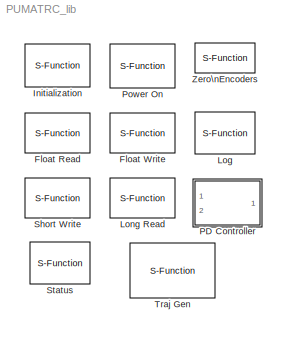
MODEL PUMATRC_lib
KIND library
BLOCK [S-Function] Float Read
  FunctionName = fltrd
  MaskCallbackString = ||
  MaskDescription = Reads a float value from OPTION offset and channel of Servo-To-Go board.
  MaskDisplay = port_label ('output',1,'val')
  MaskEnableString = on,on,on
  MaskIconFrame = on
  MaskIconOpaque = on
  MaskIconRotate = none
  MaskIconUnits = autoscale
  MaskPromptString = Option|Channel|Sample Time
  MaskStyleString = popup(TORQUE|TORQUE6|VOLTAGE|POSITION|POSITION6|STATUS|POT|POT6|INDEX|INDEX6|POWER|CALIB),edit,edit
  MaskTabNameString = ,,
  MaskToolTipString = on,on,on
  MaskTunableValueString = on,on,on
  MaskValueString = TORQUE|0|0
  MaskVarAliasString = ,,
  MaskVariables = option=@1;channel=@2;sampleTime=@3;
  MaskVisibilityString = on,on,on
  Parameters = option,channel,sampleTime
  Ports = [0, 1]
  Priority = 10
BLOCK [S-Function] Float Write
  FunctionName = fltwr
  MaskCallbackString = ||
  MaskDescription = Writes a float value to OPTION offset and channel of Servo-To-Go board.
  MaskDisplay = port_label('input',1,'val')\ndisp('')
  MaskEnableString = on,on,on
  MaskIconFrame = on
  MaskIconOpaque = on
  MaskIconRotate = none
  MaskIconUnits = autoscale
  MaskPromptString = Option|Channel|Sample Time
  MaskStyleString = popup(TORQUE|TORQUE6|VOLTAGE|POSITION|POSITION6|STATUS|POT|POT6|INDEX|INDEX6|POWER|CALIB),edit,edit
  MaskTabNameString = ,,
  MaskToolTipString = on,on,on
  MaskTunableValueString = on,on,on
  MaskValueString = TORQUE|0|0
  MaskVarAliasString = ,,
  MaskVariables = option=@1;channel=@2;sampleTime=@3;
  MaskVisibilityString = on,on,on
  Parameters = option,channel,sampleTime
  Ports = [1]
  Priority = 10
BLOCK [S-Function] Initialization
  FunctionName = robot_init
  MaskDescription = Initializes a Servo-To-Go board. Enter board address in decimal.
  MaskDisplay = disp('Board\\nInitialization')\n
  MaskEnableString = on
  MaskIconFrame = on
  MaskIconOpaque = on
  MaskIconRotate = none
  MaskIconUnits = autoscale
  MaskPromptString = Board Address(in decimal)
  MaskStyleString = edit
  MaskToolTipString = on
  MaskTunableValueString = on
  MaskValueString = 0
  MaskVariables = boardAddr=@1;
  MaskVisibilityString = on
  Parameters = boardAddr
  Ports = []
  Priority = 1
BLOCK [S-Function] Log
  FunctionName = flog
  MaskCallbackString = |
  MaskDescription = Values from the input are written to the filename at the specified period. The filename should be relative to the directory where model/code resides.\n
  MaskDisplay = port_label('input',1,'to File')\ndisp('')
  MaskEnableString = on,on
  MaskIconFrame = on
  MaskIconOpaque = on
  MaskIconRotate = none
  MaskIconUnits = autoscale
  MaskPromptString = Log Filename|Sample Time
  MaskSelfModifiable = on
  MaskStyleString = edit,edit
  MaskTabNameString = ,
  MaskToolTipString = on,on
  MaskTunableValueString = on,on
  MaskValueString = 0|0
  MaskVarAliasString = ,
  MaskVariables = fileName=@1;sampleTime=@2;
  MaskVisibilityString = on,on
  Parameters = fileName,sampleTime
  Ports = [1]
  Priority = 10
BLOCK [S-Function] Long Read
  FunctionName = longrd
  MaskCallbackString = ||
  MaskDescription = Writes a long value to OPTION offset and channel of Servo-To-Go board.
  MaskDisplay = port_label('output',1,'val')\ndisp('')
  MaskEnableString = on,on,on
  MaskIconFrame = on
  MaskIconOpaque = on
  MaskIconRotate = none
  MaskIconUnits = autoscale
  MaskPromptString = Option|Channel|Sample Time
  MaskStyleString = popup(TORQUE|TORQUE6|VOLTAGE|POSITION|POSITION6|STATUS|POT|POT6|INDEX|INDEX6|POWER|CALIB),edit,edit
  MaskTabNameString = ,,
  MaskToolTipString = on,on,on
  MaskTunableValueString = on,on,on
  MaskValueString = TORQUE|0|0
  MaskVarAliasString = ,,
  MaskVariables = option=@1;channel=@2;sampleTime=@3;
  MaskVisibilityString = on,on,on
  Parameters = option,channel,sampleTime
  Ports = [0, 1]
  Priority = 10
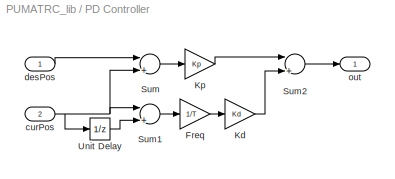
BLOCK [SubSystem] PD Controller
  MaskCallbackString = ||
  MaskDescription = Proportional-Derivative controller. Torque = Kp*(desPos- pos) - Kv*(time averaged velocity)
  MaskEnableString = on,on,on
  MaskIconFrame = on
  MaskIconOpaque = on
  MaskIconRotate = none
  MaskIconUnits = autoscale
  MaskPromptString = Kp|Kd|Sample Time
  MaskStyleString = edit,edit,edit
  MaskTabNameString = ,,
  MaskToolTipString = on,on,on
  MaskTunableValueString = on,on,on
  MaskValueString = 0|0|0
  MaskVarAliasString = ,,
  MaskVariables = Kp=@1;Kd=@2;T=@3;
  MaskVisibilityString = on,on,on
  MinAlgLoopOccurrences = off
  Ports = [2, 1]
  Priority = 10
  RTWSystemCode = Auto
  TreatAsAtomicUnit = off
BLOCK [Gain] PD Controller/Freq
  Gain = 1/T
BLOCK [Gain] PD Controller/Kd
  Gain = Kd
BLOCK [Gain] PD Controller/Kp
  Gain = Kp
BLOCK [Sum] PD Controller/Sum
  InputSameDT = off
  Inputs = |+-
  OutDataTypeMode = Inherit via internal rule
  Ports = [2, 1]
BLOCK [Sum] PD Controller/Sum1
  InputSameDT = off
  Inputs = |+-
  OutDataTypeMode = Inherit via internal rule
  Ports = [2, 1]
BLOCK [Sum] PD Controller/Sum2
  InputSameDT = off
  Inputs = |+-
  OutDataTypeMode = Inherit via internal rule
  Ports = [2, 1]
BLOCK [UnitDelay] PD Controller/Unit Delay
  SampleTime = T
BLOCK [Inport] PD Controller/curPos
  IconDisplay = Port number
  LatchInput = off
  Port = 2
BLOCK [Inport] PD Controller/desPos
  IconDisplay = Port number
  LatchInput = off
  Port = 1
BLOCK [Outport] PD Controller/out
  BusOutputAsStruct = off
  IconDisplay = Port number
BLOCK [S-Function] Power On
  FunctionName = robot_power
  MaskDisplay = disp('Power On')
  MaskIconFrame = on
  MaskIconOpaque = on
  MaskIconRotate = none
  MaskIconUnits = autoscale
  Ports = []
  Priority = 2
BLOCK [S-Function] Short Write
  FunctionName = shortwr
  MaskCallbackString = ||
  MaskDescription = Reads a short value from OPTION offset and channel of Servo-To-Go board.
  MaskDisplay = port_label('input',1,'val')\ndisp('')
  MaskEnableString = on,on,on
  MaskIconFrame = on
  MaskIconOpaque = on
  MaskIconRotate = none
  MaskIconUnits = autoscale
  MaskPromptString = Option|Channel|Sample Time
  MaskStyleString = popup(TORQUE|TORQUE6|VOLTAGE|POSITION|POSITION6|STATUS|POT|POT6|INDEX|INDEX6|POWER|CALIB),edit,edit
  MaskTabNameString = ,,
  MaskToolTipString = on,on,on
  MaskTunableValueString = on,on,on
  MaskValueString = TORQUE|0|0
  MaskVarAliasString = ,,
  MaskVariables = option=@1;channel=@2;sampleTime=@3;
  MaskVisibilityString = on,on,on
  Parameters = option,channel,sampleTime
  Ports = [1]
  Priority = 10
BLOCK [S-Function] Status
  FunctionName = status
  MaskCallbackString = ||
  MaskDisplay = port_label('output',1,'val')\n
  MaskEnableString = on,on,on
  MaskIconFrame = on
  MaskIconOpaque = on
  MaskIconRotate = none
  MaskIconUnits = autoscale
  MaskPromptString = Option|Channel|Sample Time
  MaskStyleString = popup(TORQUE|TORQUE6|VOLTAGE|POSITION|POSITION6|STATUS|POT|POT6|INDEX|INDEX6|POWER|CALIB|HAND|INDEX_BIT|ALL_INDEX_BITS|CLR_INDEX_BIT|CLR_INDEX_BITS|CLR_ADC_BIT ),edit,edit
  MaskTabNameString = ,,
  MaskToolTipString = on,on,on
  MaskTunableValueString = on,on,on
  MaskValueString = TORQUE|0|0
  MaskVarAliasString = ,,
  MaskVariables = option=@1;channel=@2;sampleTime=@3;
  MaskVisibilityString = on,on,on
  Parameters = option,channel,sampleTime,
  Ports = [0, 1]
BLOCK [S-Function] Traj Gen
  FunctionName = trajq
  MaskCallbackString = ||||
  MaskDisplay = port_label('input',1,'theta')\nport_label('input',2','enable')\nport_label('output',1,'jt')\nport_label('output',2,'stop')
  MaskEnableString = on,on,on,on,on
  MaskIconFrame = on
  MaskIconOpaque = on
  MaskIconRotate = none
  MaskIconUnits = autoscale
  MaskPromptString = Sample Time|Joint Minimum Angles|Joint Maximum Angles|Calibration File Name|Joint Increments
  MaskStyleString = edit,edit,edit,edit,edit
  MaskTabNameString = ,,,,
  MaskToolTipString = on,on,on,on,on
  MaskTunableValueString = on,on,on,on,on
  MaskValueString = 0|0|0|0|0
  MaskVarAliasString = ,,,,
  MaskVariables = sampleTime=@1;jtMin=@2;jtMax=@3;calibFile=@4;jtIncr=@5;
  MaskVisibilityString = on,on,on,on,on
  Parameters = sampleTime,jtMin,jtMax,calibFile,jtIncr
  Ports = [2, 2]
  Priority = 10
BLOCK [S-Function] Zero\nEncoders
  FunctionName = robot_zero
  MaskDisplay = disp('Zero\\nEncoders')
  MaskIconFrame = on
  MaskIconOpaque = on
  MaskIconRotate = none
  MaskIconUnits = autoscale
  Ports = []
  Priority = 3
LINE PD Controller/Freq:1 -> PD Controller/Kd:1
LINE PD Controller/Kd:1 -> PD Controller/Sum2:2
LINE PD Controller/Kp:1 -> PD Controller/Sum2:1
LINE PD Controller/Sum1:1 -> PD Controller/Freq:1
LINE PD Controller/Sum2:1 -> PD Controller/out:1
LINE PD Controller/Sum:1 -> PD Controller/Kp:1
LINE PD Controller/Unit Delay:1 -> PD Controller/Sum1:2
NET PD Controller/curPos:1 -> PD Controller/Sum1:1, PD Controller/Sum:2, PD Controller/Unit Delay:1
LINE PD Controller/desPos:1 -> PD Controller/Sum:1
note: NET lines group one-source signal fan-out (src -> all destinations, sorted); 1:1 wires keep LINE
